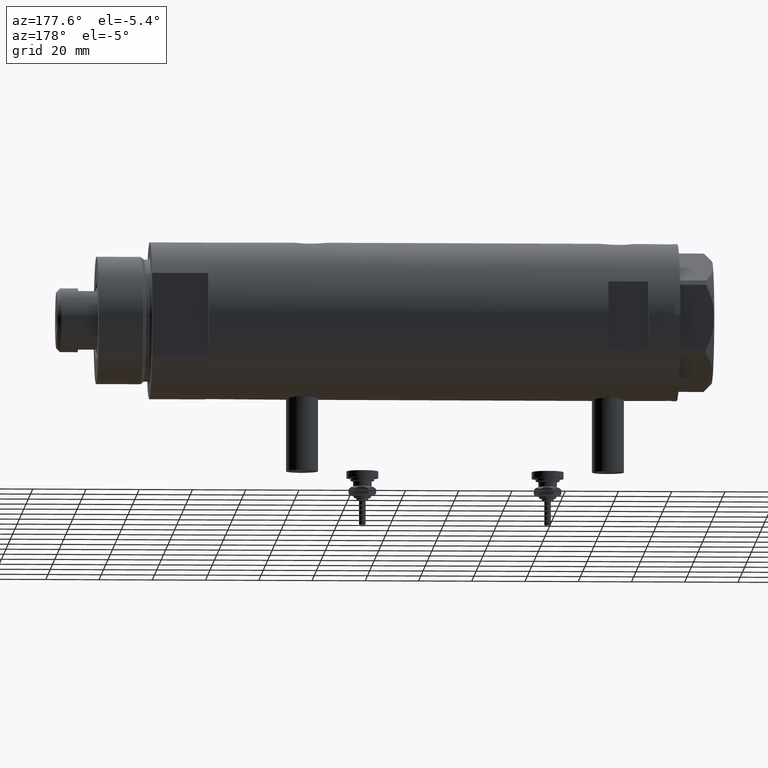
[diagram: clean part render]
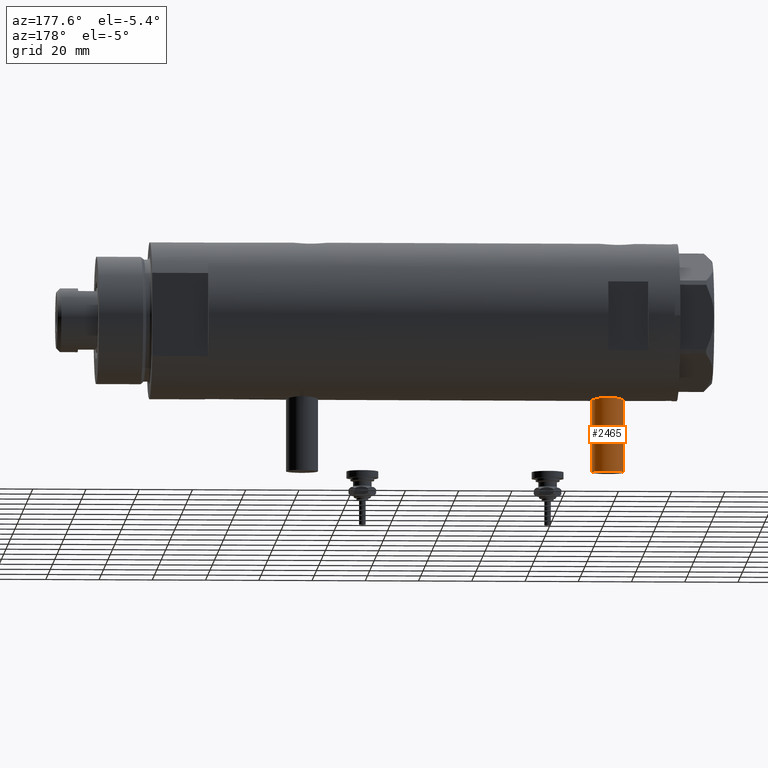
[diagram: same view with one face highlighted and labeled with its STEP entity id]
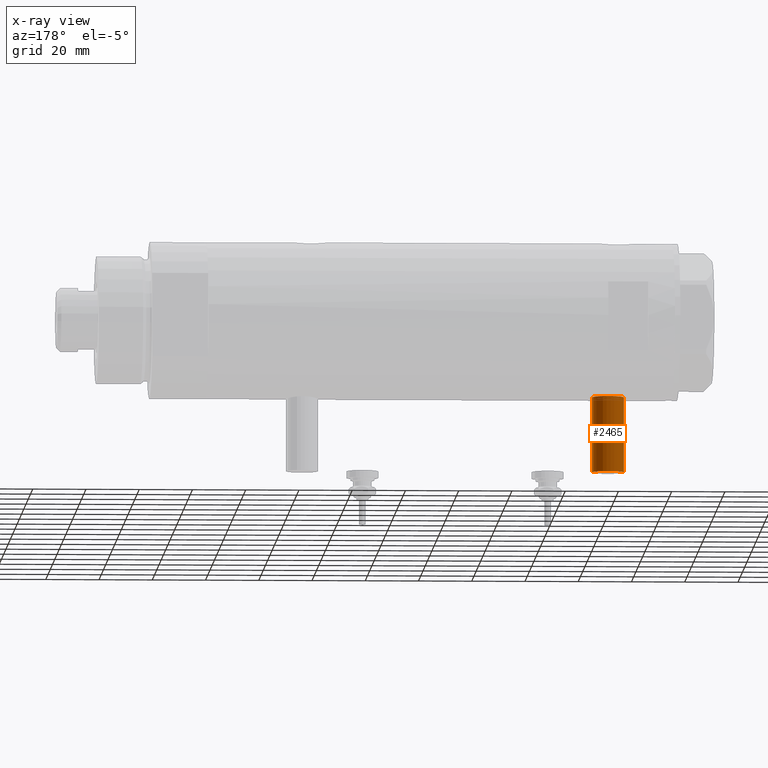
[diagram: x-ray of the same camera — body ghosted, the highlighted face saturated]
A machine part, auxiliary view. The second image highlights one B-rep face of the part: STEP entity #2465.
The next image is the same camera in x-ray: the body ghosted, the highlighted face saturated — about 0% of this face is hidden behind the body in this view.
In plain terms, the highlighted cylindrical surface (edge-blend (fillet) strip) has radius 6 mm, axis along (0, 0, 1).
Its self-contained STEP definition (entity closure, byte-faithful):
#133 = CIRCLE ( 'NONE', #2744, 5.999999999999991118 ) ;
#221 = ORIENTED_EDGE ( 'NONE', *, *, #1300, .T. ) ;
#283 = DIRECTION ( 'NONE',  ( 0.000000000000000000, 0.000000000000000000, 1.000000000000000000 ) ) ;
#350 = ORIENTED_EDGE ( 'NONE', *, *, #2944, .F. ) ;
#380 = CARTESIAN_POINT ( 'NONE',  ( -56.60000000000000142, 7.347880794884104945E-16, 69.59999999999998010 ) ) ;
#579 = DIRECTION ( 'NONE',  ( -1.000000000000000000, 0.000000000000000000, 0.000000000000000000 ) ) ;
#660 = CYLINDRICAL_SURFACE ( 'NONE', #5116, 5.999999999999991118 ) ;
#757 = DIRECTION ( 'NONE',  ( 1.000000000000000000, -0.000000000000000000, -0.000000000000000000 ) ) ;
#777 = ORIENTED_EDGE ( 'NONE', *, *, #4530, .F. ) ;
#912 = VECTOR ( 'NONE', #1697, 1000.000000000000000 ) ;
#1290 = EDGE_LOOP ( 'NONE', ( #777, #3863, #221, #350 ) ) ;
#1300 = EDGE_CURVE ( 'NONE', #2360, #3951, #133, .T. ) ;
#1533 = CARTESIAN_POINT ( 'NONE',  ( -28.30000000000000071, 0.000000000000000000, 63.59999999999998721 ) ) ;
#1580 = CARTESIAN_POINT ( 'NONE',  ( -56.60000000000000142, 0.000000000000000000, 57.60000000000000142 ) ) ;
#1697 = DIRECTION ( 'NONE',  ( 1.000000000000000000, -0.000000000000000000, -0.000000000000000000 ) ) ;
#1717 = CARTESIAN_POINT ( 'NONE',  ( -56.60000000000000142, 0.000000000000000000, 63.59999999999998721 ) ) ;
#1792 = CARTESIAN_POINT ( 'NONE',  ( -56.60000000000000142, 0.000000000000000000, 57.60000000000000142 ) ) ;
#2039 = FACE_OUTER_BOUND ( 'NONE', #1290, .T. ) ;
#2214 = LINE ( 'NONE', #1792, #3402 ) ;
#2360 = VERTEX_POINT ( 'NONE', #5574 ) ;
#2465 = ADVANCED_FACE ( 'NONE', ( #2039 ), #660, .T. ) ;
#2694 = DIRECTION ( 'NONE',  ( -1.000000000000000000, 0.000000000000000000, 0.000000000000000000 ) ) ;
#2744 = AXIS2_PLACEMENT_3D ( 'NONE', #1533, #579, #3840 ) ;
#2944 = EDGE_CURVE ( 'NONE', #3164, #3951, #2214, .T. ) ;
#3064 = CARTESIAN_POINT ( 'NONE',  ( -56.60000000000000142, 7.347880794884101001E-16, 69.59999999999998010 ) ) ;
#3164 = VERTEX_POINT ( 'NONE', #1580 ) ;
#3402 = VECTOR ( 'NONE', #4028, 1000.000000000000000 ) ;
#3476 = CARTESIAN_POINT ( 'NONE',  ( -56.60000000000000142, 0.000000000000000000, 63.59999999999998721 ) ) ;
#3662 = EDGE_CURVE ( 'NONE', #4349, #2360, #3994, .T. ) ;
#3840 = DIRECTION ( 'NONE',  ( 0.000000000000000000, 0.000000000000000000, 1.000000000000000000 ) ) ;
#3863 = ORIENTED_EDGE ( 'NONE', *, *, #3662, .T. ) ;
#3951 = VERTEX_POINT ( 'NONE', #5891 ) ;
#3972 = DIRECTION ( 'NONE',  ( 0.000000000000000000, 0.000000000000000000, -1.000000000000000000 ) ) ;
#3994 = LINE ( 'NONE', #380, #912 ) ;
#4028 = DIRECTION ( 'NONE',  ( 1.000000000000000000, -0.000000000000000000, -0.000000000000000000 ) ) ;
#4349 = VERTEX_POINT ( 'NONE', #3064 ) ;
#4530 = EDGE_CURVE ( 'NONE', #4349, #3164, #5138, .T. ) ;
#5116 = AXIS2_PLACEMENT_3D ( 'NONE', #3476, #757, #3972 ) ;
#5138 = CIRCLE ( 'NONE', #5230, 5.999999999999991118 ) ;
#5230 = AXIS2_PLACEMENT_3D ( 'NONE', #1717, #2694, #283 ) ;
#5574 = CARTESIAN_POINT ( 'NONE',  ( -28.30000000000000071, 7.347880794884101001E-16, 69.59999999999998010 ) ) ;
#5891 = CARTESIAN_POINT ( 'NONE',  ( -28.30000000000000071, 0.000000000000000000, 57.60000000000000142 ) ) ;